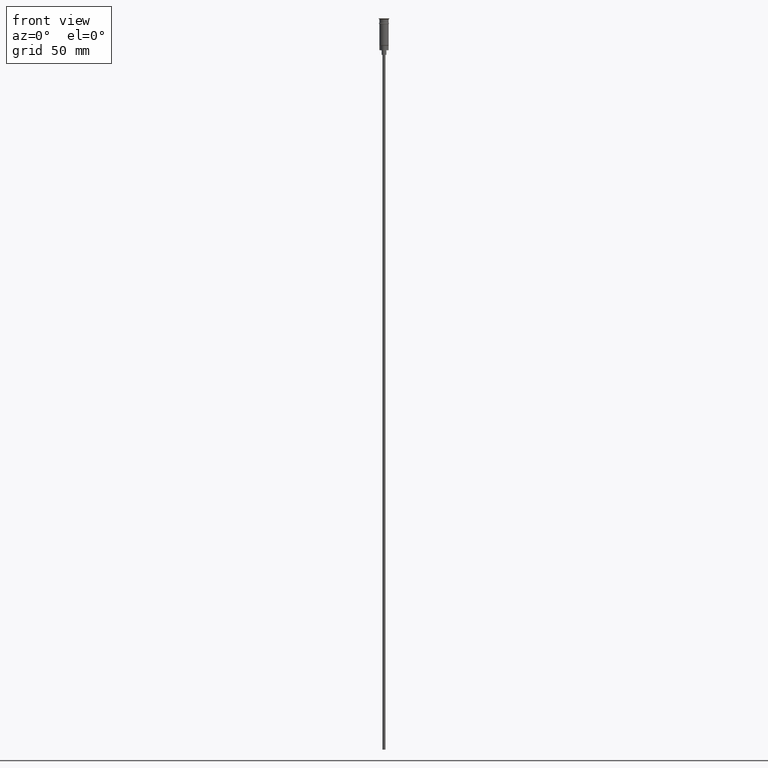
[diagram: clean part render]
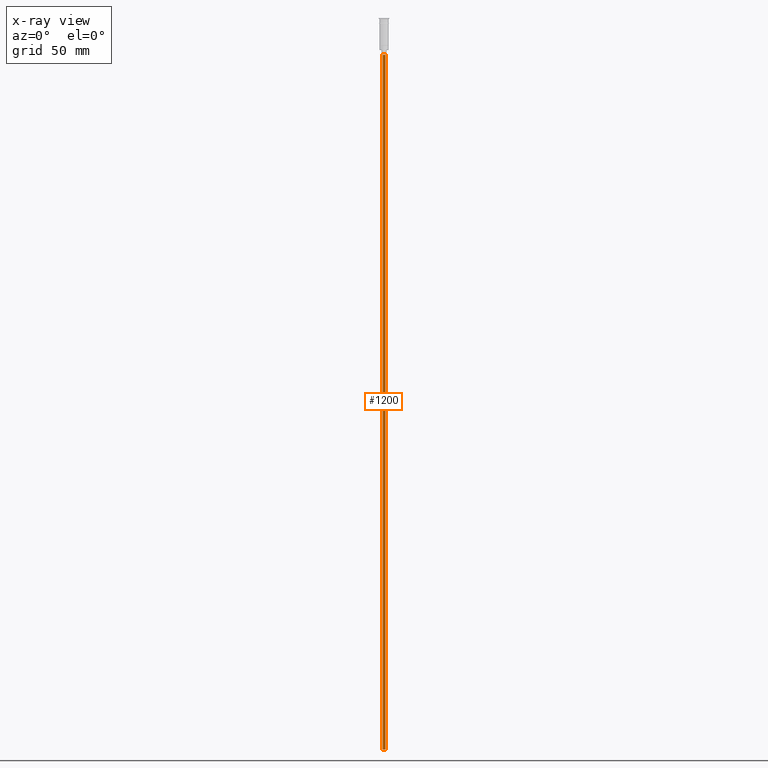
[diagram: x-ray — body ghosted, one internal face saturated and labeled with its STEP entity id]
A machine part, front view, then the same camera in x-ray: the body is ghosted and one INTERNAL B-rep face — a face not visible from any outside direction — is saturated and labeled: STEP entity #1200.
In plain terms, the highlighted cylindrical surface (edge-blend (fillet) strip) has radius 1 mm, axis along (-0, -0, 1).
Its self-contained STEP definition (entity closure, byte-faithful):
#9 = ORIENTED_EDGE ( 'NONE', *, *, #858, .T. ) ;
#36 = CARTESIAN_POINT ( 'NONE',  ( 0.000000000000000000, 0.000000000000000000, -23.50000000000000000 ) ) ;
#114 = CYLINDRICAL_SURFACE ( 'NONE', #245, 0.9999999999999997780 ) ;
#213 = VECTOR ( 'NONE', #1190, 1000.000000000000000 ) ;
#245 = AXIS2_PLACEMENT_3D ( 'NONE', #875, #492, #1387 ) ;
#267 = DIRECTION ( 'NONE',  ( 0.000000000000000000, 0.000000000000000000, -1.000000000000000000 ) ) ;
#275 = EDGE_CURVE ( 'NONE', #644, #593, #701, .T. ) ;
#288 = DIRECTION ( 'NONE',  ( -1.000000000000000000, 0.000000000000000000, 0.000000000000000000 ) ) ;
#421 = CARTESIAN_POINT ( 'NONE',  ( 0.000000000000000000, 0.000000000000000000, -470.5000000000000568 ) ) ;
#422 = EDGE_CURVE ( 'NONE', #923, #633, #606, .T. ) ;
#454 = ORIENTED_EDGE ( 'NONE', *, *, #422, .T. ) ;
#492 = DIRECTION ( 'NONE',  ( -0.000000000000000000, -0.000000000000000000, 1.000000000000000000 ) ) ;
#567 = CARTESIAN_POINT ( 'NONE',  ( -0.9999999999999997780, 1.224646799147352961E-16, -23.50000000000000000 ) ) ;
#593 = VERTEX_POINT ( 'NONE', #672 ) ;
#598 = DIRECTION ( 'NONE',  ( -0.000000000000000000, -0.000000000000000000, 1.000000000000000000 ) ) ;
#601 = EDGE_CURVE ( 'NONE', #923, #644, #1570, .T. ) ;
#606 = LINE ( 'NONE', #1575, #927 ) ;
#633 = VERTEX_POINT ( 'NONE', #567 ) ;
#634 = DIRECTION ( 'NONE',  ( -1.000000000000000000, 0.000000000000000000, 0.000000000000000000 ) ) ;
#644 = VERTEX_POINT ( 'NONE', #1211 ) ;
#672 = CARTESIAN_POINT ( 'NONE',  ( 0.9999999999999997780, 0.000000000000000000, -23.50000000000000000 ) ) ;
#701 = LINE ( 'NONE', #1335, #213 ) ;
#726 = CARTESIAN_POINT ( 'NONE',  ( -0.9999999999999997780, 1.224646799147352961E-16, -470.5000000000000568 ) ) ;
#858 = EDGE_CURVE ( 'NONE', #633, #593, #1199, .T. ) ;
#862 = EDGE_LOOP ( 'NONE', ( #1333, #454, #9, #1015 ) ) ;
#875 = CARTESIAN_POINT ( 'NONE',  ( 0.000000000000000000, 0.000000000000000000, -470.5000000000000568 ) ) ;
#923 = VERTEX_POINT ( 'NONE', #726 ) ;
#927 = VECTOR ( 'NONE', #598, 1000.000000000000000 ) ;
#994 = FACE_OUTER_BOUND ( 'NONE', #862, .T. ) ;
#1015 = ORIENTED_EDGE ( 'NONE', *, *, #275, .F. ) ;
#1190 = DIRECTION ( 'NONE',  ( -0.000000000000000000, -0.000000000000000000, 1.000000000000000000 ) ) ;
#1199 = CIRCLE ( 'NONE', #1249, 0.9999999999999997780 ) ;
#1200 = ADVANCED_FACE ( 'NONE', ( #994 ), #114, .T. ) ;
#1211 = CARTESIAN_POINT ( 'NONE',  ( 0.9999999999999997780, 0.000000000000000000, -470.5000000000000568 ) ) ;
#1249 = AXIS2_PLACEMENT_3D ( 'NONE', #36, #267, #634 ) ;
#1333 = ORIENTED_EDGE ( 'NONE', *, *, #601, .F. ) ;
#1335 = CARTESIAN_POINT ( 'NONE',  ( 0.9999999999999997780, 0.000000000000000000, -470.5000000000000568 ) ) ;
#1352 = AXIS2_PLACEMENT_3D ( 'NONE', #421, #1562, #288 ) ;
#1387 = DIRECTION ( 'NONE',  ( 1.000000000000000000, 0.000000000000000000, 0.000000000000000000 ) ) ;
#1562 = DIRECTION ( 'NONE',  ( 0.000000000000000000, 0.000000000000000000, -1.000000000000000000 ) ) ;
#1570 = CIRCLE ( 'NONE', #1352, 0.9999999999999997780 ) ;
#1575 = CARTESIAN_POINT ( 'NONE',  ( -0.9999999999999997780, 1.224646799147352961E-16, -470.5000000000000568 ) ) ;